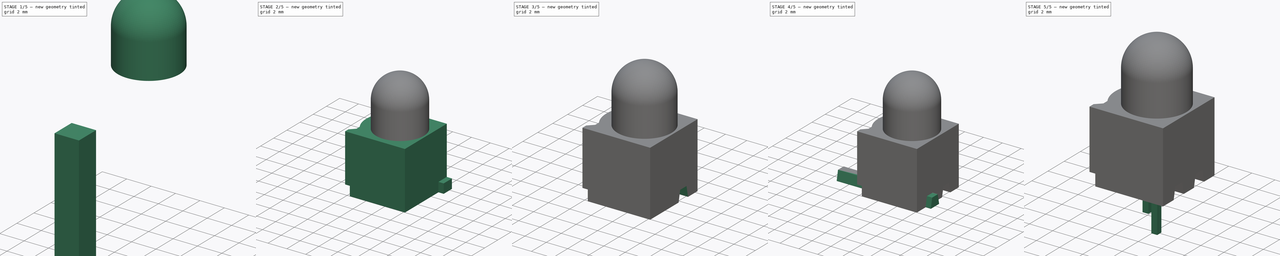
[diagram: build sequence overview — one tinted view per stage of 5, left to right]
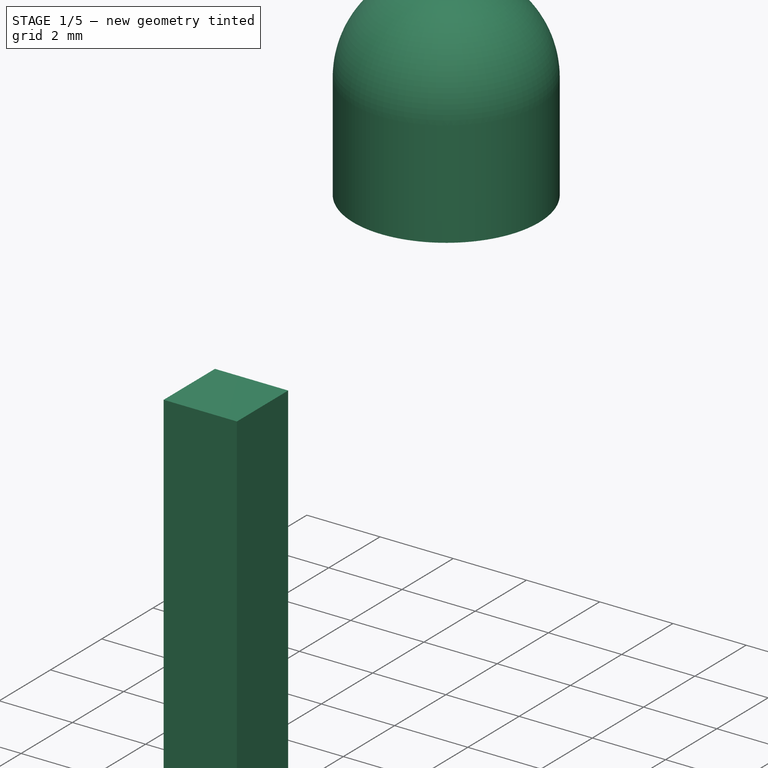
[diagram: stage 1 of 5 — iso view after this stage's code; geometry added in this stage tinted green]
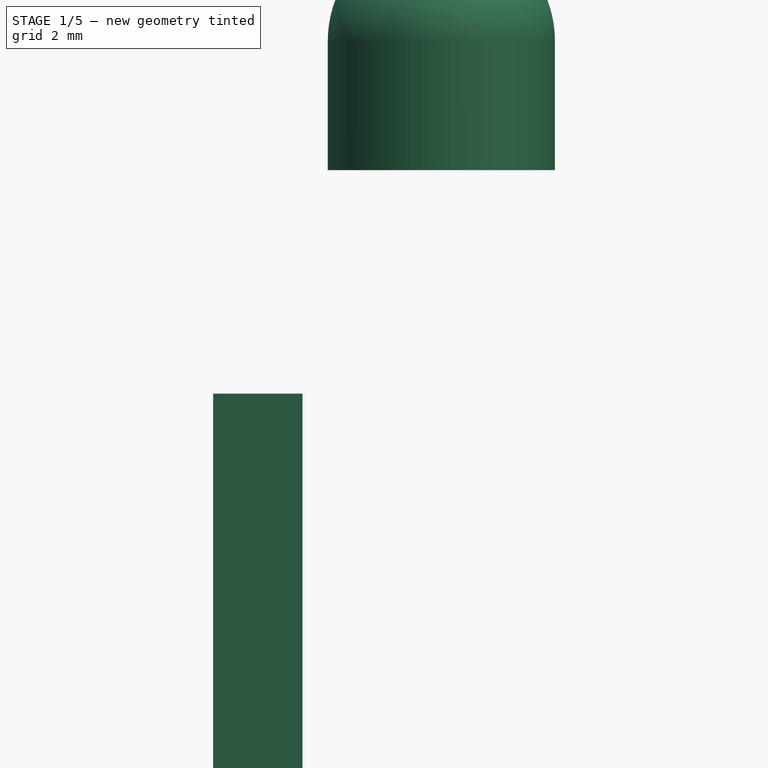
[diagram: stage 1 of 5 — front view after this stage's code; geometry added in this stage tinted green]
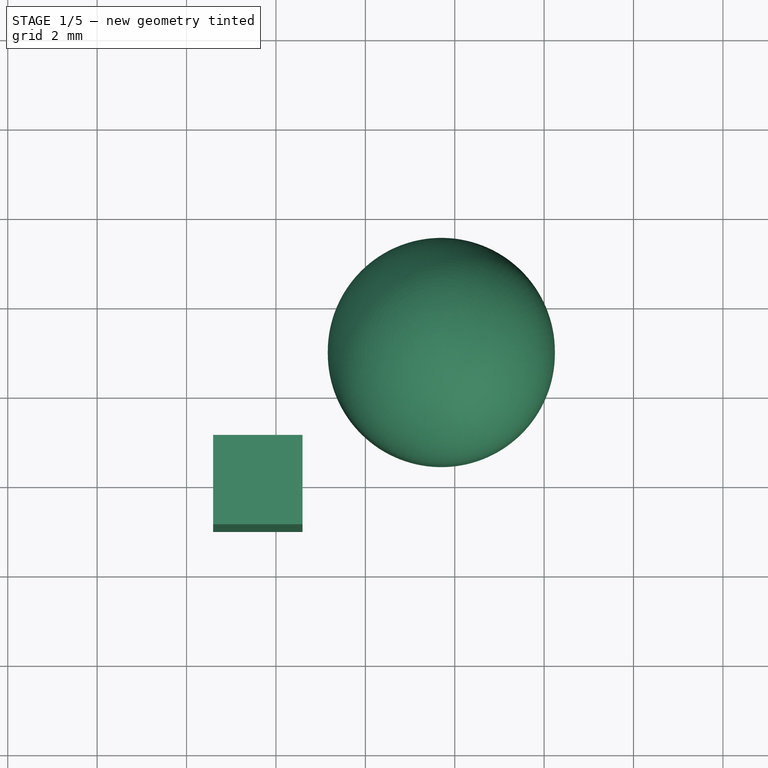
[diagram: stage 1 of 5 — top view after this stage's code; geometry added in this stage tinted green]
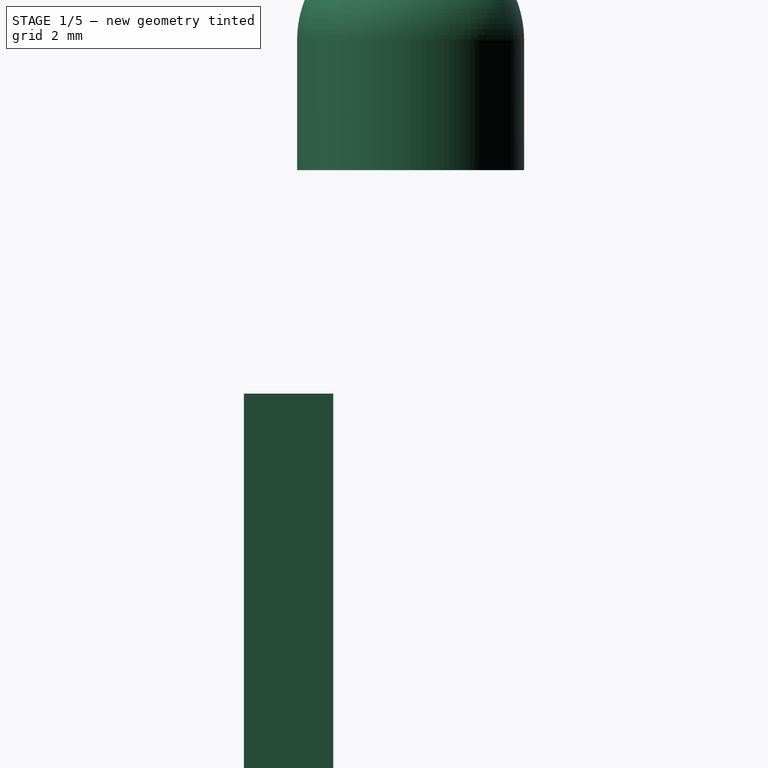
[diagram: stage 1 of 5 — right view after this stage's code; geometry added in this stage tinted green]
FCSTD DOCUMENT  (FreeCAD 0.17R11223 (Git))
Label: LED_VCCLite_53811H1_6.35x6.35mm_10
License: All rights reserved
LicenseURL: http://en.wikipedia.org/wiki/All_rights_reserved
objects: Part::Box×5, Part::Chamfer×4, Part::Cut×3, Sketcher::SketchObject×1, PartDesign::Pad×1, PartDesign::Body×1, Part::Cylinder×1, Part::Fillet×1
note: 18 computed .brp shape members not serialized (recipe doc carries the construction recipe); baked Part::Feature solids carry a one-line shape summary decoded from their .brp

FEATURE [Part::Box] Box004  label="Kub002"
  AttacherType = Attacher::AttachEngine3D
  Height = 10
  Length = 2
  Placement = pos=(-3.405,-5,-9) rot=(0,0,1;0rad)
  Width = 2
FEATURE [Part::Cylinder] Cylinder
  Angle = 360
  AttacherType = Attacher::AttachEngine3D
  Height = 5.43
  Placement = pos=(1.7,-1.27,6) rot=(0,0,1;0rad)
  Radius = 2.54
FEATURE [Part::Fillet] Fillet
  Base = -> Cylinder
  Edges = 1 edges r=2.53: [Edge1]
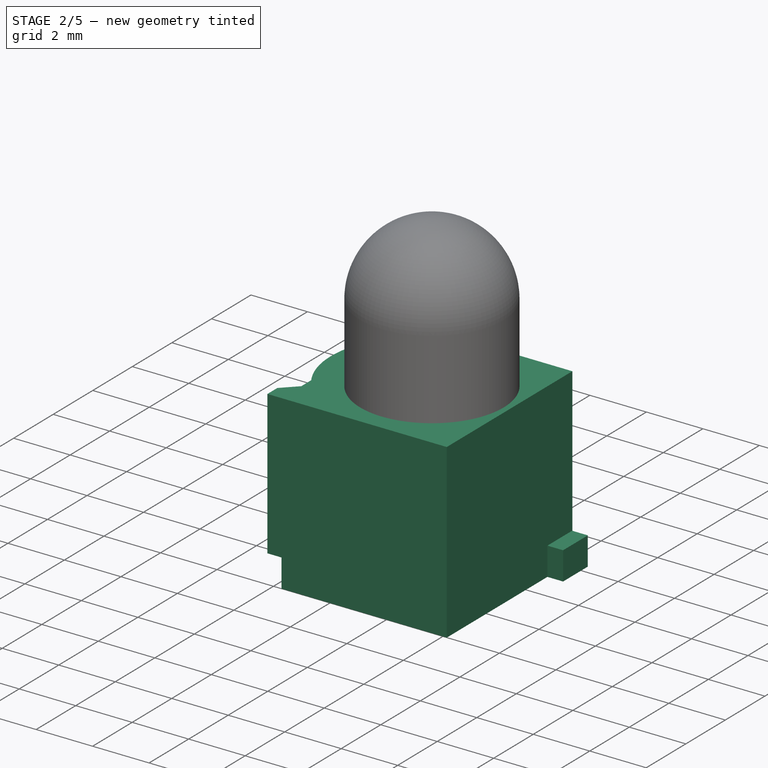
[diagram: stage 2 of 5 — iso view after this stage's code; geometry added in this stage tinted green]
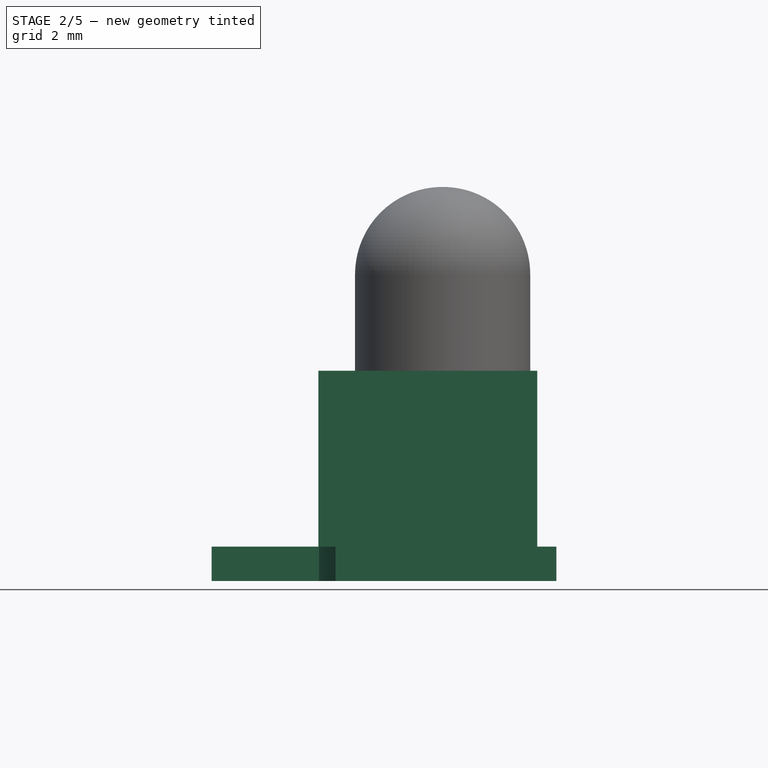
[diagram: stage 2 of 5 — front view after this stage's code; geometry added in this stage tinted green]
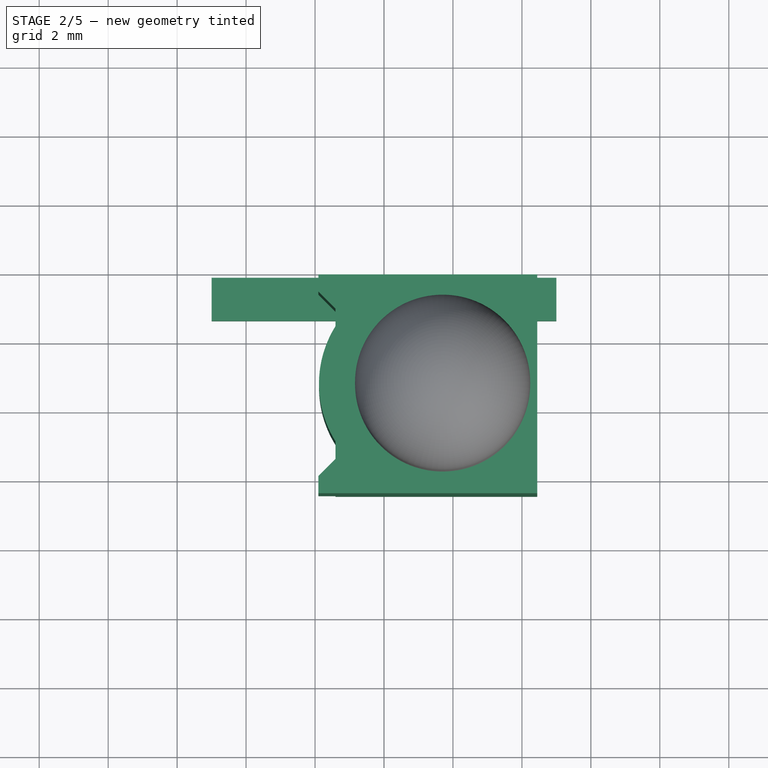
[diagram: stage 2 of 5 — top view after this stage's code; geometry added in this stage tinted green]
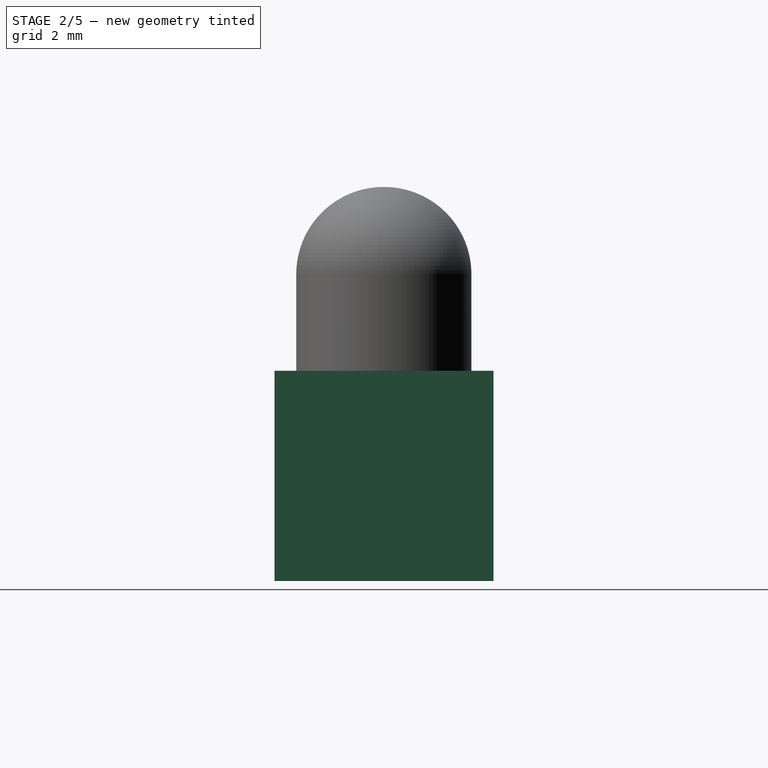
[diagram: stage 2 of 5 — right view after this stage's code; geometry added in this stage tinted green]
FEATURE [Sketcher::SketchObject] Sketch
  MapMode = 5
  Support = -> [XY_Plane]
  sketch-geometry (10):
    g0: LineSegment StartX=-1.405 StartY=0.41 StartZ=0 EndX=-1.405 EndY=0.91 EndZ=0
    g1: LineSegment StartX=-1.405 StartY=0.91 StartZ=0 EndX=-1.905 EndY=1.41 EndZ=0
    g2: LineSegment StartX=-1.905 StartY=1.41 StartZ=0 EndX=-1.905 EndY=1.91 EndZ=0
    g3: LineSegment StartX=-1.905 StartY=1.91 StartZ=0 EndX=4.445 EndY=1.91 EndZ=0
    g4: LineSegment StartX=4.445 StartY=1.91 StartZ=0 EndX=4.445 EndY=-4.44 EndZ=0
    g5: LineSegment StartX=4.445 StartY=-4.44 StartZ=0 EndX=-1.905 EndY=-4.44 EndZ=0
    g6: LineSegment StartX=-1.905 StartY=-4.44 StartZ=0 EndX=-1.905 EndY=-3.94 EndZ=0
    g7: LineSegment StartX=-1.905 StartY=-3.94 StartZ=0 EndX=-1.405 EndY=-3.44 EndZ=0
    g8: LineSegment StartX=-1.405 StartY=-3.44 StartZ=0 EndX=-1.405 EndY=-2.94 EndZ=0
    g9: ArcOfCircle CenterX=1.27 CenterY=-1.265 CenterZ=0 NormalX=0 NormalY=0 NormalZ=1 Radius=3.15614 StartAngle=2.58215 EndAngle=3.70103
  constraints (32):
    c: Vertical(g0)
    c: Coincident(g0,g1)
    c: Coincident(g1,g2)
    c: Vertical(g2)
    c: Coincident(g2,g3)
    c: Horizontal(g3)
    c: Coincident(g3,g4)
    c: Vertical(g4)
    c: Coincident(g4,g5)
    c: Horizontal(g5)
    c: Coincident(g5,g6)
    c: Vertical(g6)
    c: Coincident(g6,g7)
    c: Coincident(g7,g8)
    c: Vertical(g8)
    c: DistanceY(g0,g0) = 0.5
    c: DistanceX(g1,g0) = 0.5
    c: DistanceY(g0,g1) = 0.5
    c: DistanceY(g1,g2) = 0.5
    c: DistanceY(g7,g8) = 0.5
    c: DistanceY(g5,g6) = 0.5
    c: DistanceX(g2,g3) = 6.35
    c: DistanceY(g4,g3) = 6.35
    c: DistanceX(g6,g7) = 0.5
    c: DistanceY(g6,g7) = 0.5
    c: DistanceX(g-1,g3) = 4.445
    c: DistanceY(g-1,g3) = 1.91
    c: DistanceX(g5,g5) = 6.35
    c: Coincident(g9,g0)
    c: DistanceY(g9,g3) = 3.175
    c: DistanceX(g9,g3) = 3.175
    c: DistanceX(g9,g8) = 0
FEATURE [PartDesign::Pad] Pad
  Length = 6.1
  Length2 = 100
  Profile = -> Sketch
  Type = 0
FEATURE [Part::Box] Box003  label="Kub001"
  AttacherType = Attacher::AttachEngine3D
  Height = 1
  Length = 10
  Placement = pos=(-5,0.65,0) rot=(0,0,1;0rad)
  Width = 1.25
FEATURE [Part::Cut] Cut
  Base = -> Body
  Tool = -> Box004
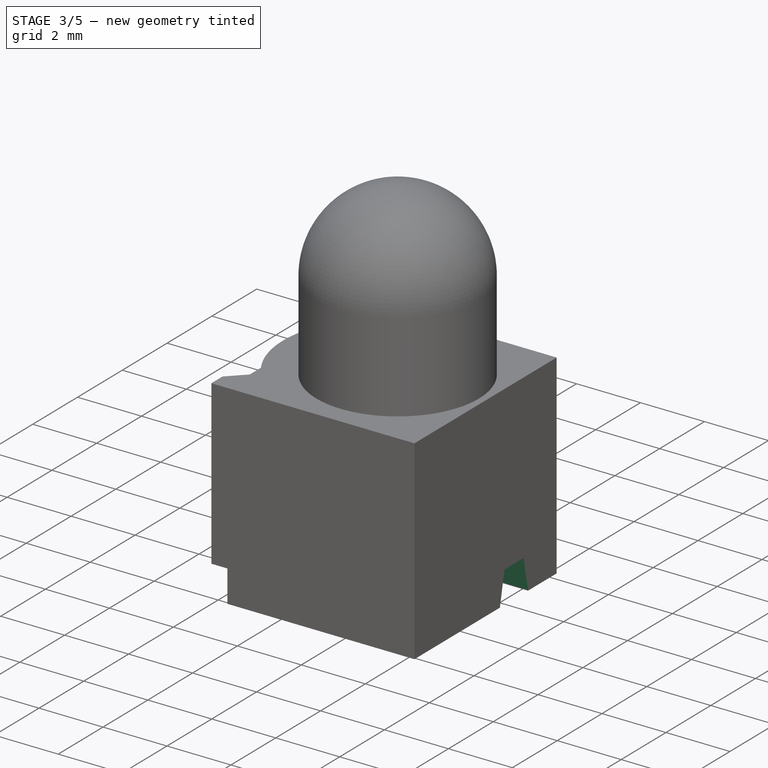
[diagram: stage 3 of 5 — iso view after this stage's code; geometry added in this stage tinted green]
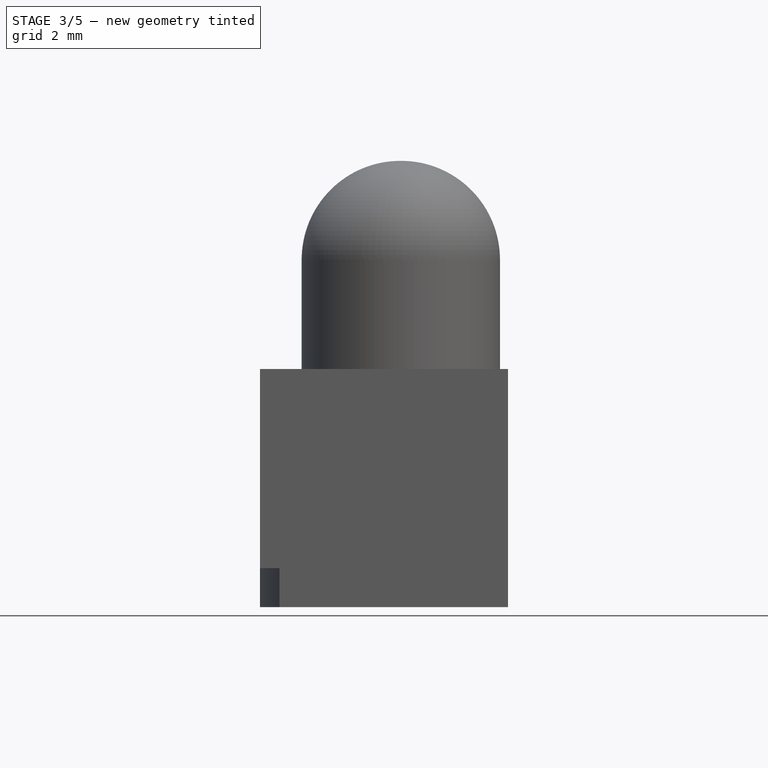
[diagram: stage 3 of 5 — front view after this stage's code; geometry added in this stage tinted green]
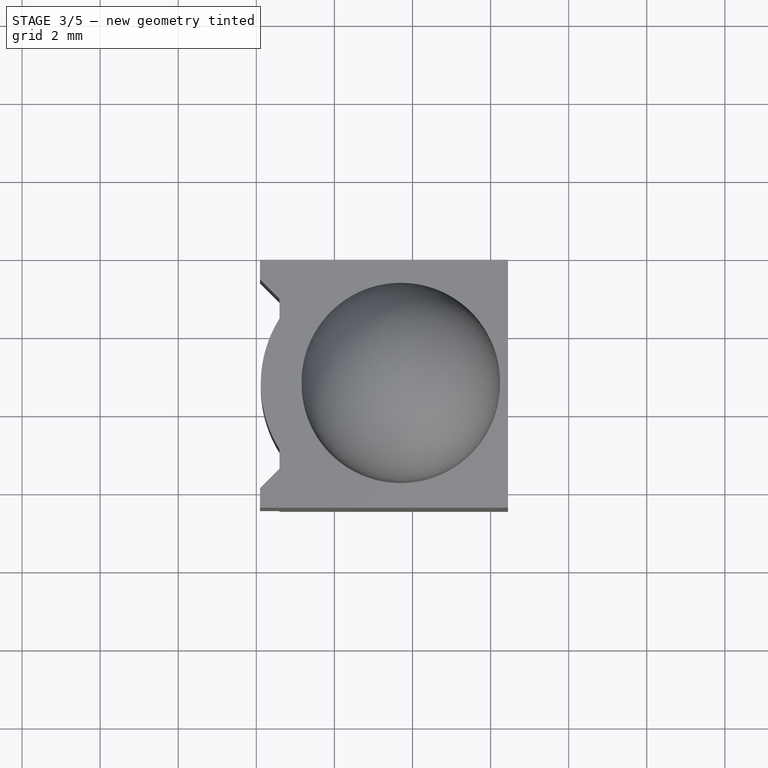
[diagram: stage 3 of 5 — top view after this stage's code; geometry added in this stage tinted green]
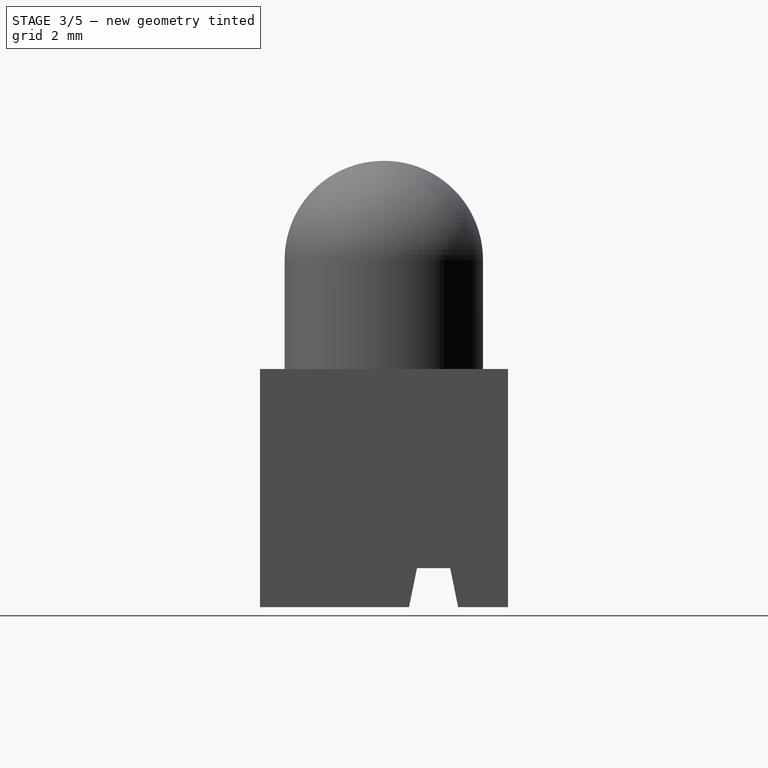
[diagram: stage 3 of 5 — right view after this stage's code; geometry added in this stage tinted green]
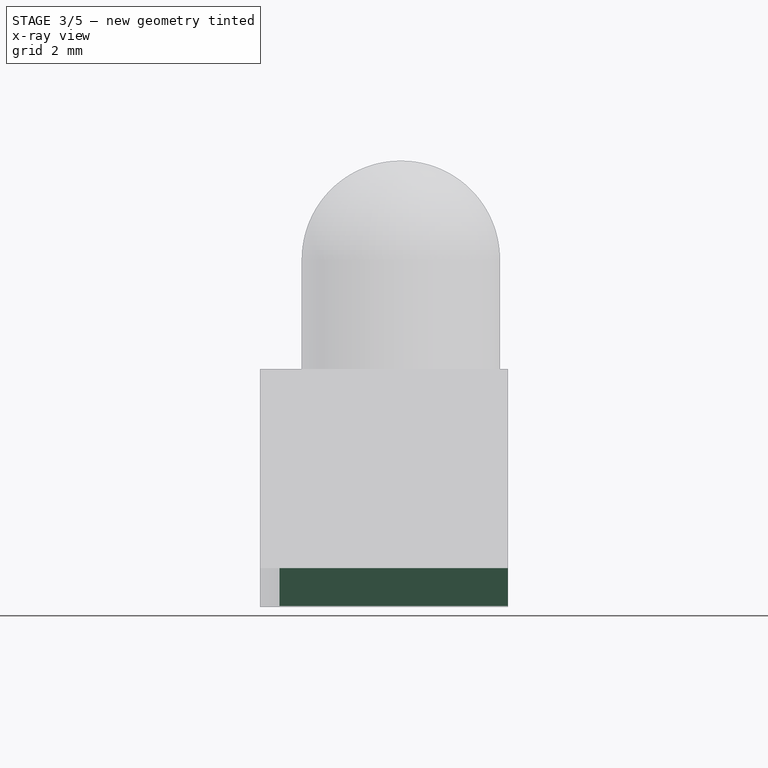
[diagram: stage 3 of 5 — x-ray composite at the front view; earlier geometry ghosted, this stage's added geometry solid]
FEATURE [Part::Chamfer] Chamfer001
  Base = -> Box003
  Edges = 1 edges: [Edge10 r1=0.98 r2=0.2]
FEATURE [Part::Chamfer] Chamfer003
  Base = -> Chamfer001
  Edges = 1 edges: [Edge13 r1=0.2 r2=0.98]
  Placement = pos=(0,-1.27,0) rot=(0,0,1;0rad)
FEATURE [Part::Cut] Cut001
  Base = -> Cut
  Tool = -> Chamfer003
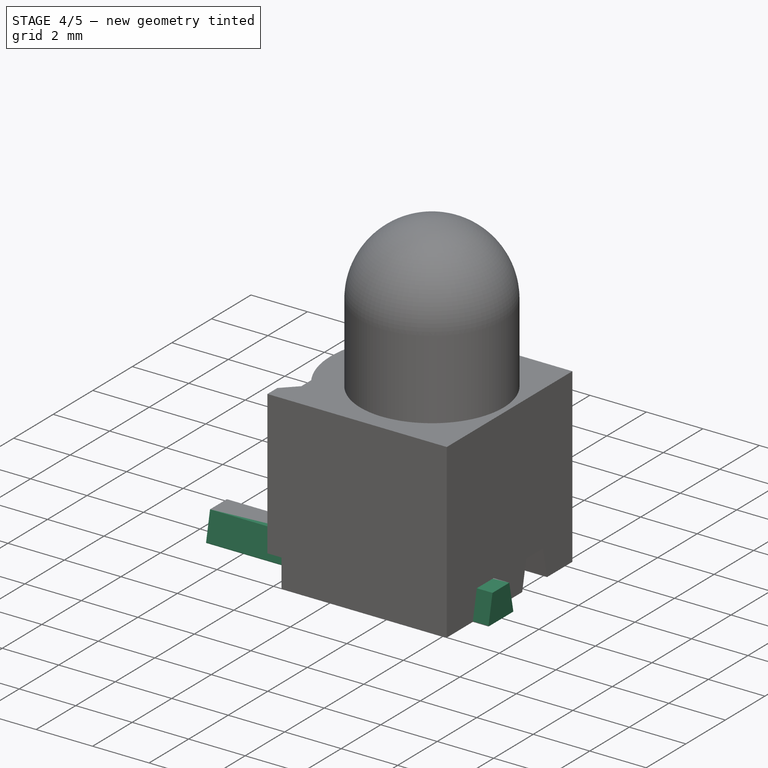
[diagram: stage 4 of 5 — iso view after this stage's code; geometry added in this stage tinted green]
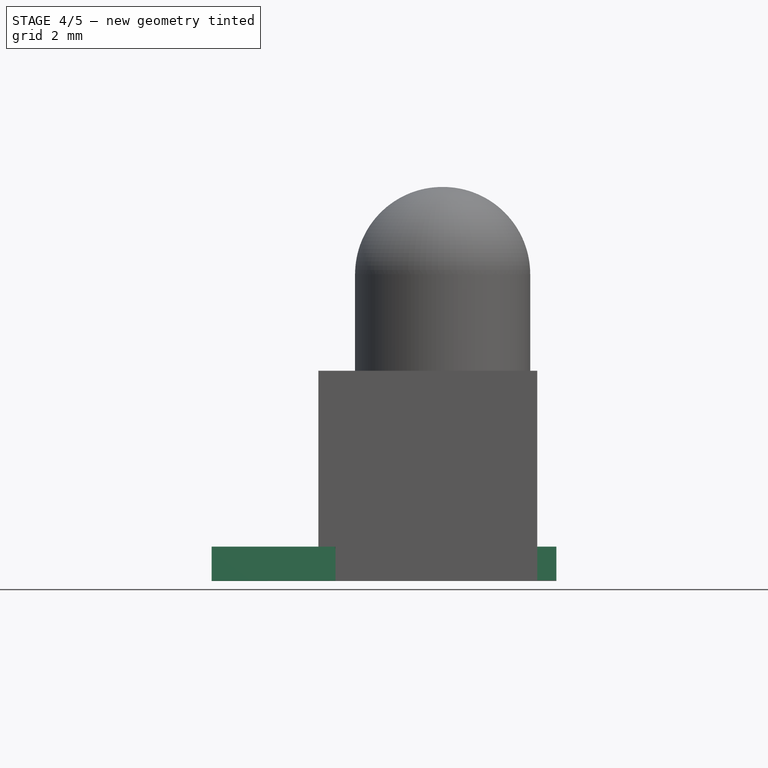
[diagram: stage 4 of 5 — front view after this stage's code; geometry added in this stage tinted green]
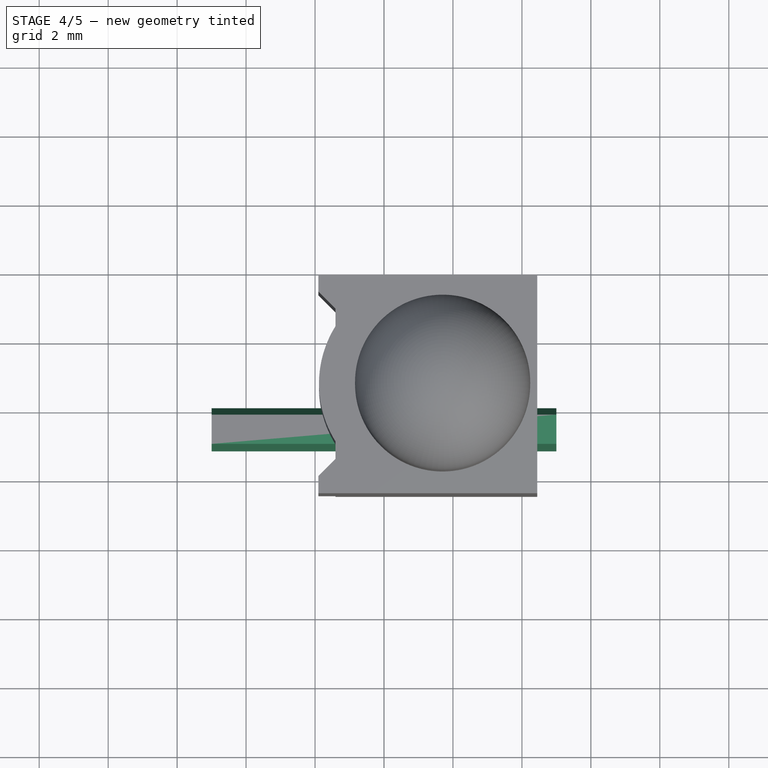
[diagram: stage 4 of 5 — top view after this stage's code; geometry added in this stage tinted green]
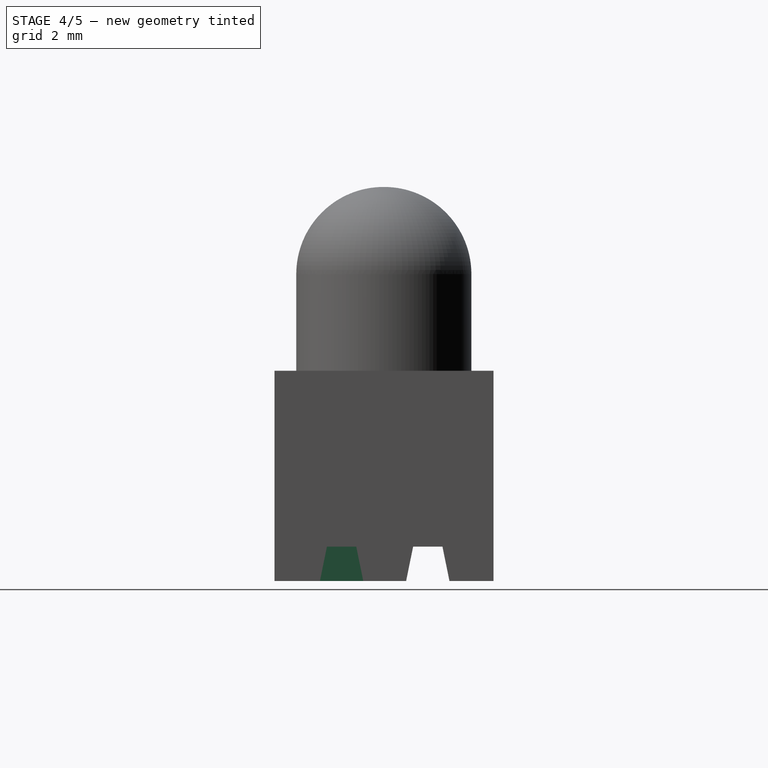
[diagram: stage 4 of 5 — right view after this stage's code; geometry added in this stage tinted green]
FEATURE [Part::Box] Box002  label="Kub"
  AttacherType = Attacher::AttachEngine3D
  Height = 1
  Length = 10
  Placement = pos=(-5,-1.85,0) rot=(0,0,1;0rad)
  Width = 1.25
FEATURE [Part::Chamfer] Chamfer
  Base = -> Box002
  Edges = 1 edges: [Edge10 r1=0.98 r2=0.2]
FEATURE [Part::Chamfer] Chamfer002
  Base = -> Chamfer
  Edges = 1 edges: [Edge13 r1=0.2 r2=0.98]
  Placement = pos=(0,-1.27,0) rot=(0,0,1;0rad)
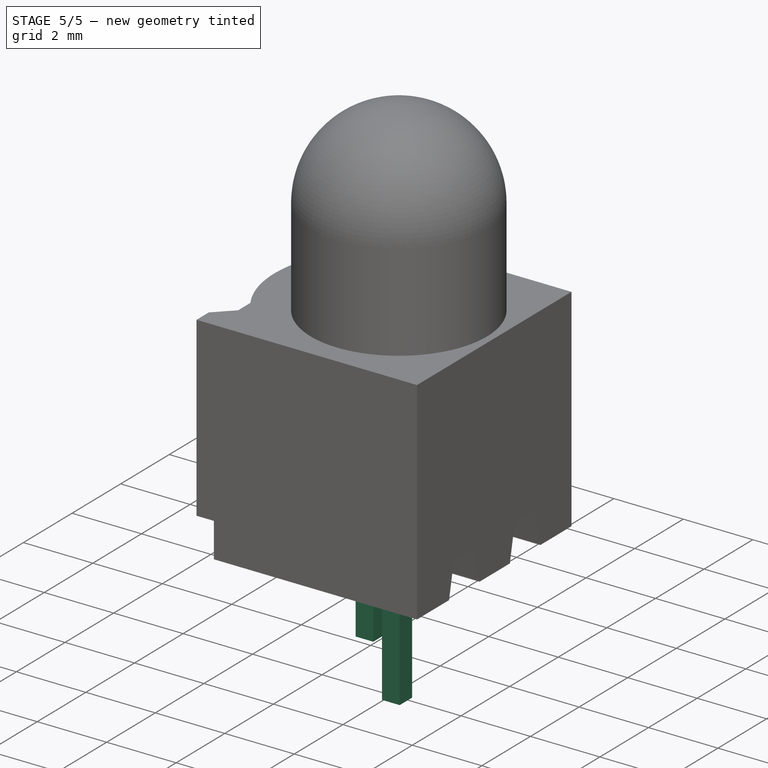
[diagram: stage 5 of 5 — iso view after this stage's code; geometry added in this stage tinted green]
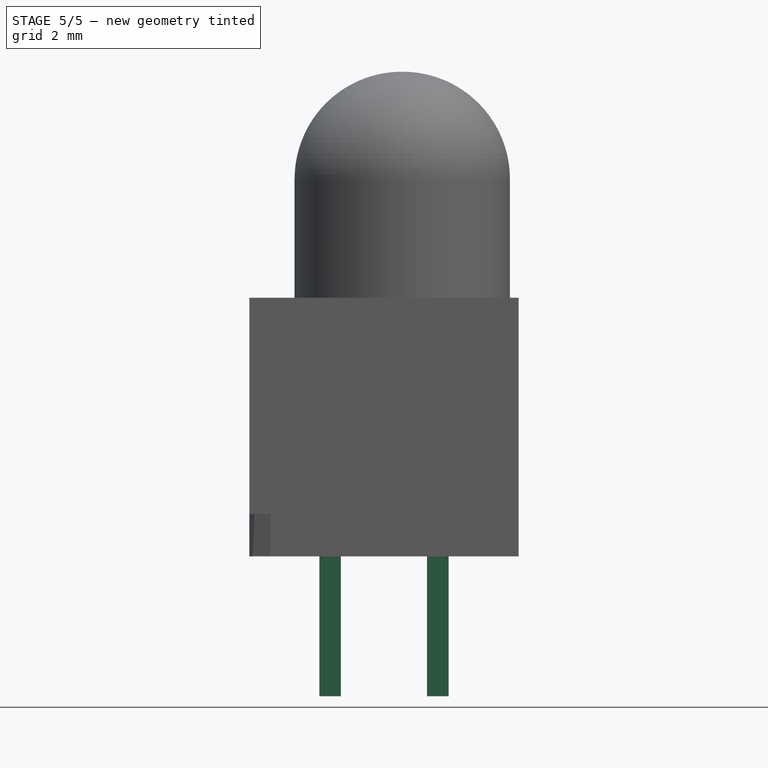
[diagram: stage 5 of 5 — front view after this stage's code; geometry added in this stage tinted green]
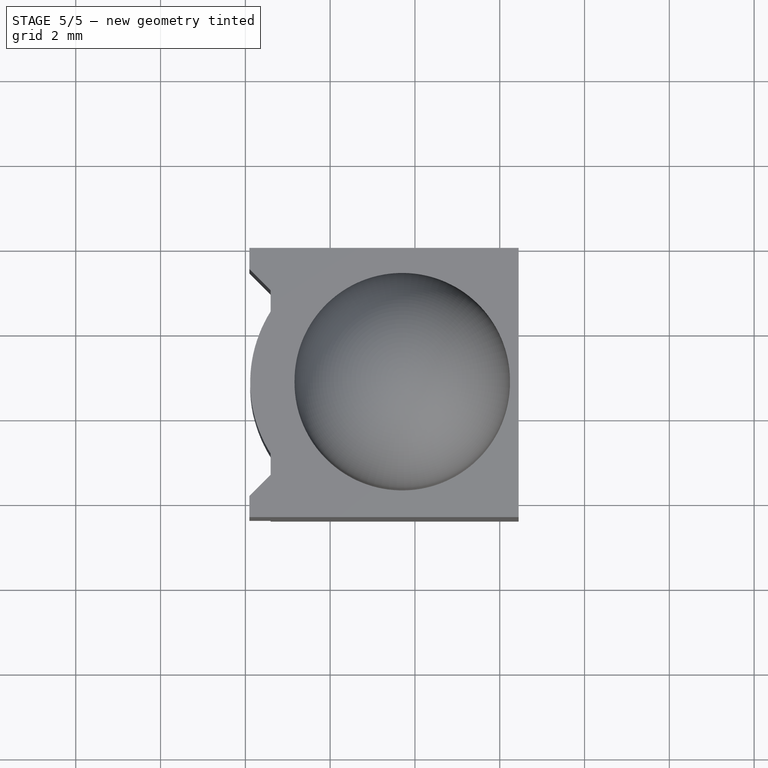
[diagram: stage 5 of 5 — top view after this stage's code; geometry added in this stage tinted green]
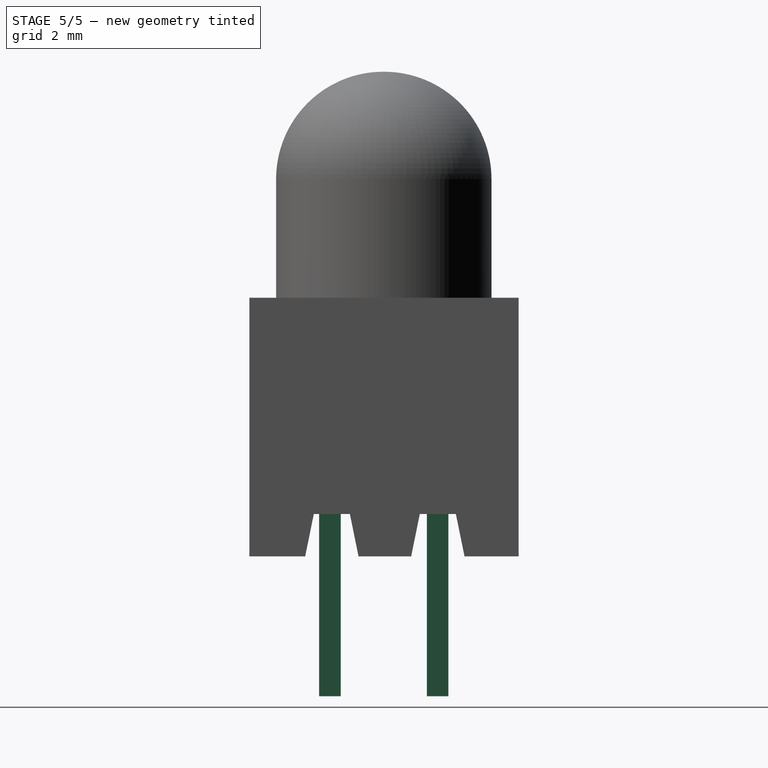
[diagram: stage 5 of 5 — right view after this stage's code; geometry added in this stage tinted green]
FEATURE [PartDesign::Body] Body
  Group = -> [Sketch,Pad]
  Origin = -> BodyOrigin
  Tip = -> Pad
FEATURE [Part::Box] Box  label="Anode"
  AttacherType = Attacher::AttachEngine3D
  Height = 6
  Length = 0.508
  Placement = pos=(-0.255,-0.255,-3.3) rot=(0,0,1;0rad)
  Width = 0.508
FEATURE [Part::Box] Box001  label="Cathode"
  AttacherType = Attacher::AttachEngine3D
  Height = 6
  Length = 0.508
  Placement = pos=(2.285,-2.795,-3.3) rot=(0,0,1;0rad)
  Width = 0.51
FEATURE [Part::Cut] Cut002
  Base = -> Cut001
  Tool = -> Chamfer002
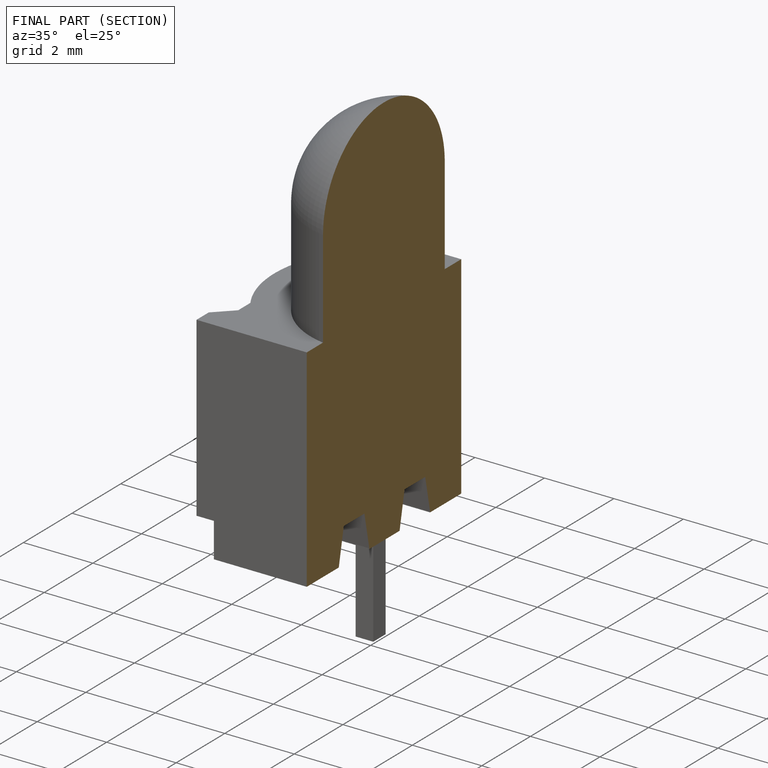
[diagram: finished part — half-section view (interior)]
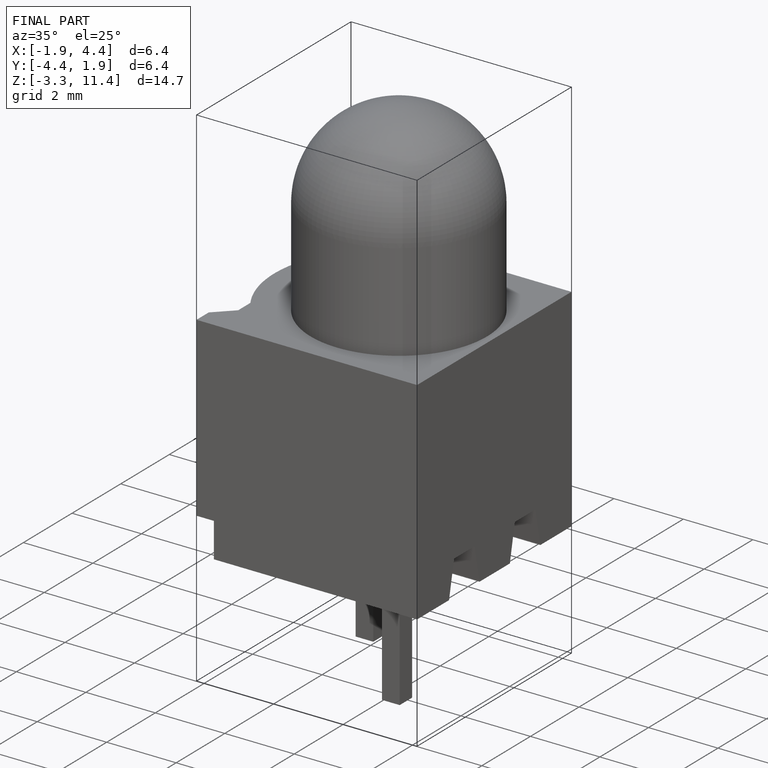
[diagram: finished part — iso view with bounding-box wireframe]
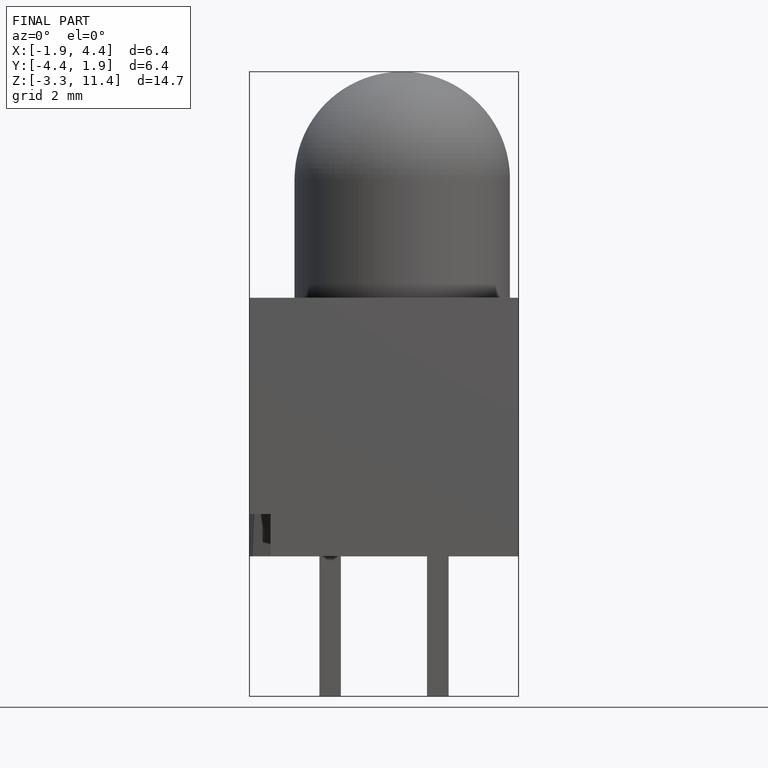
[diagram: finished part — front view with bounding-box wireframe]
